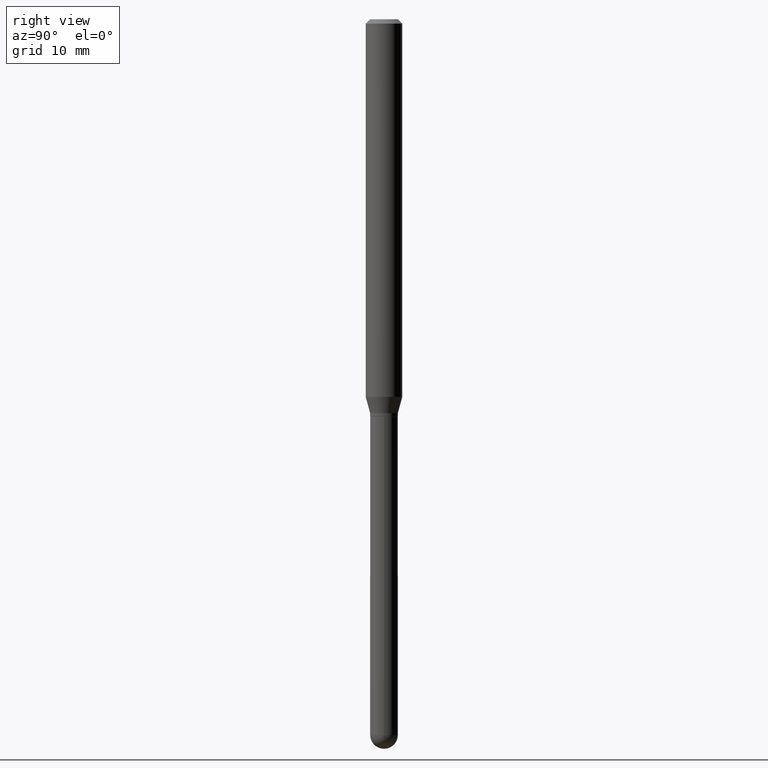
[diagram: clean part render]
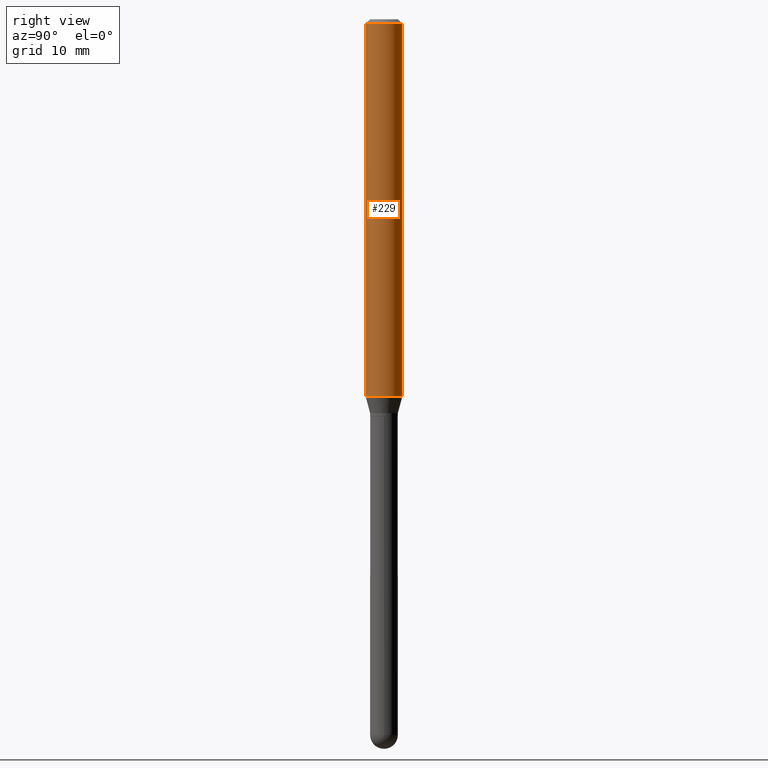
[diagram: same view with one face highlighted and labeled with its STEP entity id]
A machine part, right view. The second image highlights one B-rep face of the part: STEP entity #229.
In plain terms, the highlighted cylindrical surface (edge-blend (fillet) strip) has radius 1.5875 mm, axis along (-0, 0, 1).
Its self-contained STEP definition (entity closure, byte-faithful):
#8 = AXIS2_PLACEMENT_3D ( 'NONE', #56, #287, #360 ) ;
#28 = CARTESIAN_POINT ( 'NONE',  ( -4.364351673553912750E-16, -0.06250000000000005551, -0.01500000000000011047 ) ) ;
#56 = CARTESIAN_POINT ( 'NONE',  ( 3.164459487392930643E-29, -4.518078667599064450E-15, -1.294019237886467666 ) ) ;
#58 = DIRECTION ( 'NONE',  ( -2.445450109815576098E-29, 3.491508113108487617E-15, 1.000000000000000000 ) ) ;
#70 = CYLINDRICAL_SURFACE ( 'NONE', #332, 0.06250000000000000000 ) ;
#83 = EDGE_CURVE ( 'NONE', #389, #429, #377, .T. ) ;
#98 = DIRECTION ( 'NONE',  ( -2.445450109815576098E-29, 3.491508113108487617E-15, 1.000000000000000000 ) ) ;
#106 = FACE_OUTER_BOUND ( 'NONE', #240, .T. ) ;
#116 = VERTEX_POINT ( 'NONE', #364 ) ;
#120 = DIRECTION ( 'NONE',  ( -2.445450109815576098E-29, 3.491508113108487617E-15, 1.000000000000000000 ) ) ;
#124 = VECTOR ( 'NONE', #311, 39.37007874015748143 ) ;
#125 = VECTOR ( 'NONE', #58, 39.37007874015748143 ) ;
#155 = EDGE_CURVE ( 'NONE', #339, #116, #511, .T. ) ;
#194 = AXIS2_PLACEMENT_3D ( 'NONE', #375, #98, #454 ) ;
#209 = CARTESIAN_POINT ( 'NONE',  ( -4.364351673553916201E-16, -0.06250000000000000000, 2.182192570692804761E-16 ) ) ;
#229 = ADVANCED_FACE ( 'NONE', ( #106 ), #70, .T. ) ;
#235 = LINE ( 'NONE', #385, #124 ) ;
#240 = EDGE_LOOP ( 'NONE', ( #306, #272, #510, #351 ) ) ;
#243 = LINE ( 'NONE', #209, #125 ) ;
#259 = DIRECTION ( 'NONE',  ( -6.982962677686265922E-15, -1.000000000000000000, 3.491508113108487617E-15 ) ) ;
#272 = ORIENTED_EDGE ( 'NONE', *, *, #283, .T. ) ;
#283 = EDGE_CURVE ( 'NONE', #116, #429, #235, .T. ) ;
#287 = DIRECTION ( 'NONE',  ( -2.445450109815576098E-29, 3.491508113108487617E-15, 1.000000000000000000 ) ) ;
#305 = CARTESIAN_POINT ( 'NONE',  ( -4.364351673553597698E-16, -0.06250000000000448253, -1.294019237886467444 ) ) ;
#306 = ORIENTED_EDGE ( 'NONE', *, *, #155, .T. ) ;
#311 = DIRECTION ( 'NONE',  ( -2.445450109815576098E-29, 3.491508113108487617E-15, 1.000000000000000000 ) ) ;
#313 = CARTESIAN_POINT ( 'NONE',  ( 4.440892098500944664E-16, 0.06249999999999995143, -0.01500000000000054588 ) ) ;
#332 = AXIS2_PLACEMENT_3D ( 'NONE', #465, #120, #259 ) ;
#339 = VERTEX_POINT ( 'NONE', #305 ) ;
#351 = ORIENTED_EDGE ( 'NONE', *, *, #489, .F. ) ;
#360 = DIRECTION ( 'NONE',  ( -6.982962677686265922E-15, -1.000000000000000000, 4.370956789862821150E-15 ) ) ;
#364 = CARTESIAN_POINT ( 'NONE',  ( 4.440892098500943678E-16, 0.06249999999999551747, -1.294019237886468110 ) ) ;
#375 = CARTESIAN_POINT ( 'NONE',  ( 3.668175164723444599E-31, -5.237262169662845786E-17, -0.01500000000000032904 ) ) ;
#377 = CIRCLE ( 'NONE', #194, 0.06250000000000000000 ) ;
#385 = CARTESIAN_POINT ( 'NONE',  ( 4.440892098500625669E-16, 0.06250000000000000000, -2.182192570692804761E-16 ) ) ;
#389 = VERTEX_POINT ( 'NONE', #28 ) ;
#429 = VERTEX_POINT ( 'NONE', #313 ) ;
#454 = DIRECTION ( 'NONE',  ( -6.982962677686265922E-15, -1.000000000000000000, 3.483106191921935554E-15 ) ) ;
#465 = CARTESIAN_POINT ( 'NONE',  ( 0.000000000000000000, 0.000000000000000000, 0.000000000000000000 ) ) ;
#489 = EDGE_CURVE ( 'NONE', #339, #389, #243, .T. ) ;
#510 = ORIENTED_EDGE ( 'NONE', *, *, #83, .F. ) ;
#511 = CIRCLE ( 'NONE', #8, 0.06250000000000000000 ) ;